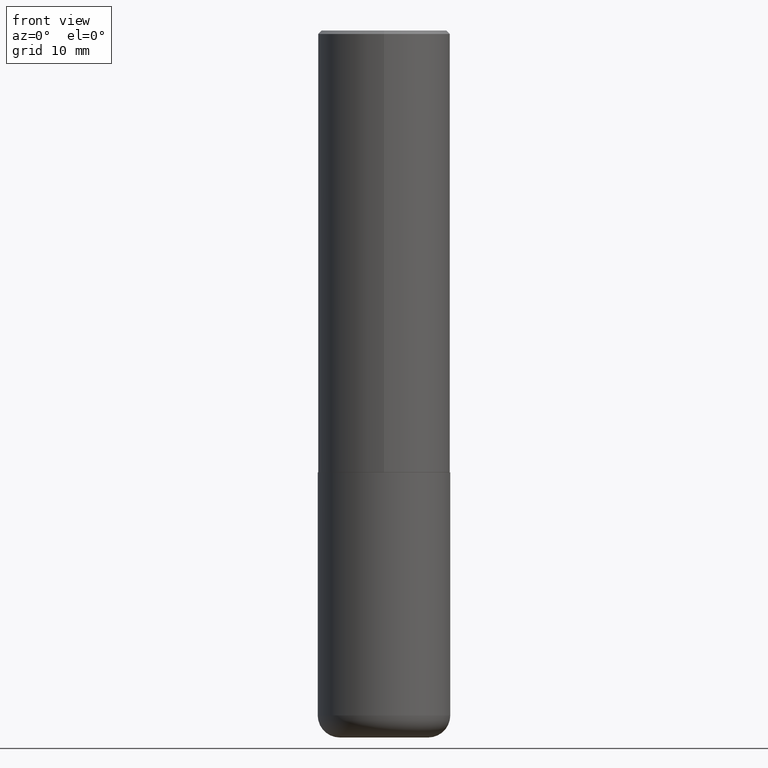
[diagram: clean part render]
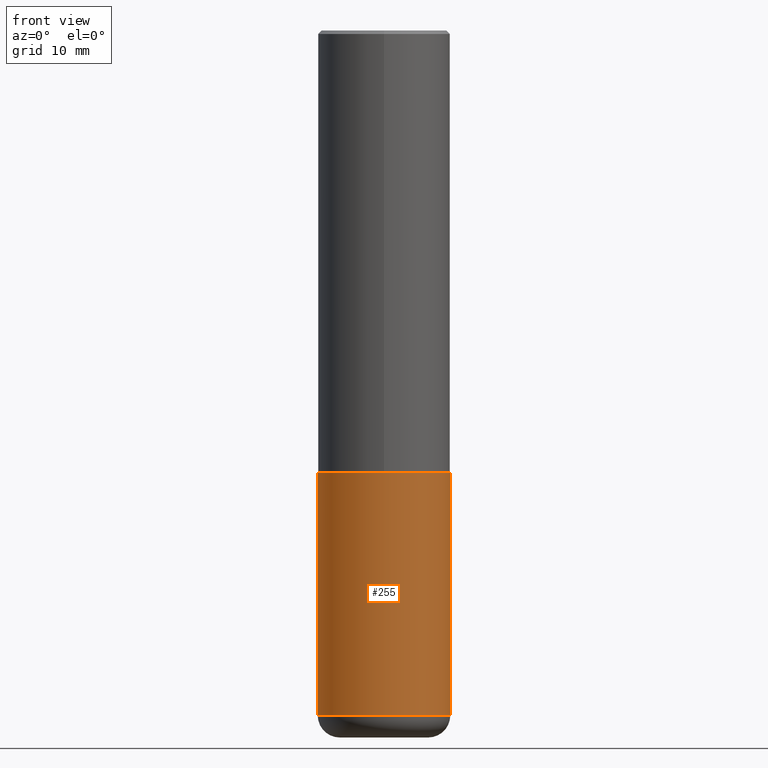
[diagram: same view with one face highlighted and labeled with its STEP entity id]
A machine part, front view. The second image highlights one B-rep face of the part: STEP entity #255.
In plain terms, the highlighted cylindrical surface (partial cylindrical patch) has radius 9.525 mm, axis along (-0, 0, 1).
Its self-contained STEP definition (entity closure, byte-faithful):
#2 = CIRCLE ( 'NONE', #275, 0.3750000000000000555 ) ;
#3 = AXIS2_PLACEMENT_3D ( 'NONE', #289, #34, #101 ) ;
#5 = ORIENTED_EDGE ( 'NONE', *, *, #345, .T. ) ;
#7 = VERTEX_POINT ( 'NONE', #39 ) ;
#28 = AXIS2_PLACEMENT_3D ( 'NONE', #31, #326, #163 ) ;
#31 = CARTESIAN_POINT ( 'NONE',  ( 9.476191623967404313E-29, -1.352949018801718908E-14, -3.875000000000000000 ) ) ;
#34 = DIRECTION ( 'NONE',  ( -2.445468806185136597E-29, 3.491481338843145583E-15, 1.000000000000000000 ) ) ;
#39 = CARTESIAN_POINT ( 'NONE',  ( -0.3749999999999999445, -1.086495492891681496E-14, -3.875000000000000000 ) ) ;
#55 = CARTESIAN_POINT ( 'NONE',  ( -0.3750000000000000555, -8.464561508462150527E-15, -2.499999999999999556 ) ) ;
#101 = DIRECTION ( 'NONE',  ( 1.000000000000000000, -6.982962677686266711E-15, 4.876176775795935793E-29 ) ) ;
#102 = VERTEX_POINT ( 'NONE', #55 ) ;
#118 = ORIENTED_EDGE ( 'NONE', *, *, #362, .F. ) ;
#136 = VECTOR ( 'NONE', #193, 39.37007874015748143 ) ;
#150 = DIRECTION ( 'NONE',  ( -2.445468806185136597E-29, 3.491481338843145583E-15, 1.000000000000000000 ) ) ;
#162 = EDGE_LOOP ( 'NONE', ( #118, #233, #5, #208 ) ) ;
#163 = DIRECTION ( 'NONE',  ( 1.000000000000000000, -6.982962677686263555E-15, 0.000000000000000000 ) ) ;
#193 = DIRECTION ( 'NONE',  ( -2.445468806185136877E-29, 3.491481338843145188E-15, 1.000000000000000000 ) ) ;
#208 = ORIENTED_EDGE ( 'NONE', *, *, #228, .F. ) ;
#221 = LINE ( 'NONE', #229, #136 ) ;
#223 = FACE_OUTER_BOUND ( 'NONE', #162, .T. ) ;
#228 = EDGE_CURVE ( 'NONE', #102, #236, #2, .T. ) ;
#229 = CARTESIAN_POINT ( 'NONE',  ( -0.3749999999999999445, 2.664535259100375303E-15, -1.844600658845589318E-29 ) ) ;
#233 = ORIENTED_EDGE ( 'NONE', *, *, #408, .T. ) ;
#236 = VERTEX_POINT ( 'NONE', #250 ) ;
#244 = VERTEX_POINT ( 'NONE', #315 ) ;
#250 = CARTESIAN_POINT ( 'NONE',  ( 0.3750000000000000555, -1.134731435124021180E-14, -2.499999999999999556 ) ) ;
#255 = ADVANCED_FACE ( 'NONE', ( #223 ), #294, .T. ) ;
#275 = AXIS2_PLACEMENT_3D ( 'NONE', #382, #150, #406 ) ;
#287 = CARTESIAN_POINT ( 'NONE',  ( 0.3749999999999999445, -2.618611004132349622E-15, 1.828566290923475642E-29 ) ) ;
#289 = CARTESIAN_POINT ( 'NONE',  ( 0.000000000000000000, 0.000000000000000000, 0.000000000000000000 ) ) ;
#294 = CYLINDRICAL_SURFACE ( 'NONE', #3, 0.3749999999999999445 ) ;
#315 = CARTESIAN_POINT ( 'NONE',  ( 0.3749999999999999445, -1.614810119214953752E-14, -3.875000000000000000 ) ) ;
#326 = DIRECTION ( 'NONE',  ( -2.445468806185136597E-29, 3.491481338843145583E-15, 1.000000000000000000 ) ) ;
#345 = EDGE_CURVE ( 'NONE', #244, #236, #387, .T. ) ;
#357 = VECTOR ( 'NONE', #384, 39.37007874015748143 ) ;
#362 = EDGE_CURVE ( 'NONE', #7, #102, #221, .T. ) ;
#382 = CARTESIAN_POINT ( 'NONE',  ( 6.113672015462840371E-29, -8.728703347107863365E-15, -2.499999999999999556 ) ) ;
#384 = DIRECTION ( 'NONE',  ( -2.445468806185136877E-29, 3.491481338843145188E-15, 1.000000000000000000 ) ) ;
#387 = LINE ( 'NONE', #287, #357 ) ;
#406 = DIRECTION ( 'NONE',  ( 1.000000000000000000, -6.982962677686264344E-15, 0.000000000000000000 ) ) ;
#408 = EDGE_CURVE ( 'NONE', #7, #244, #414, .T. ) ;
#414 = CIRCLE ( 'NONE', #28, 0.3749999999999999445 ) ;